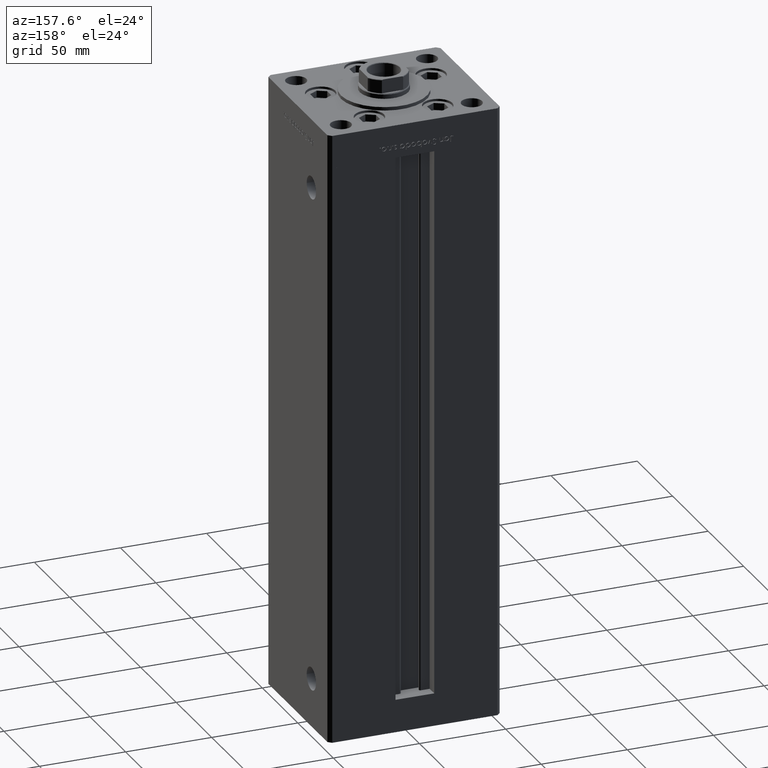
[diagram: clean part render]
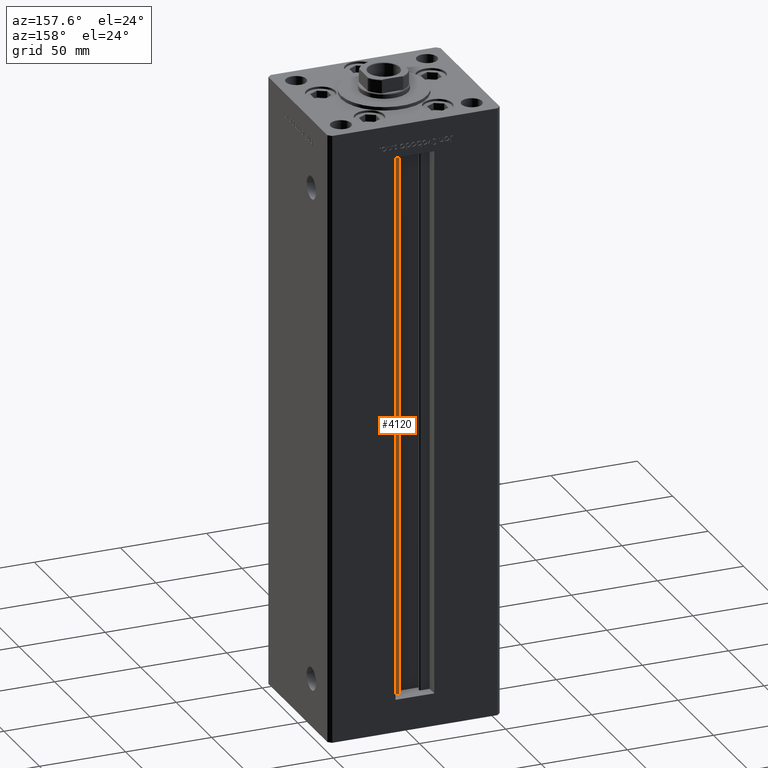
[diagram: same view with one face highlighted and labeled with its STEP entity id]
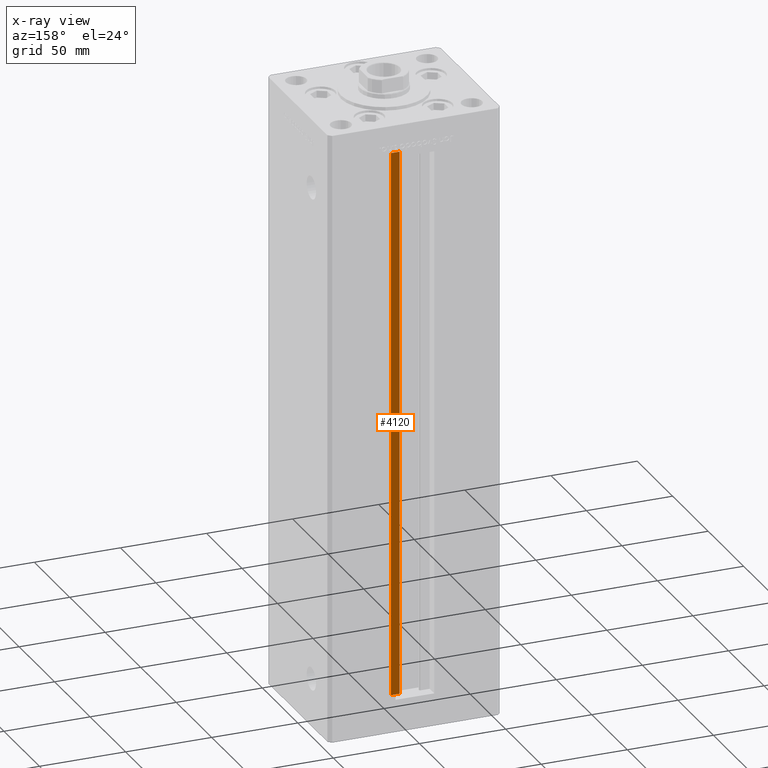
[diagram: x-ray of the same camera — body ghosted, the highlighted face saturated]
A machine part, auxiliary view. The second image highlights one B-rep face of the part: STEP entity #4120.
The next image is the same camera in x-ray: the body ghosted, the highlighted face saturated — about 0% of this face is hidden behind the body in this view.
In plain terms, the highlighted planar face has unit normal (0, -1, 0).
Its self-contained STEP definition (entity closure, byte-faithful):
#3272 = ORIENTED_EDGE ( 'NONE', *, *, #39943, .F. ) ;
#4120 = ADVANCED_FACE ( 'NONE', ( #20097 ), #44094, .F. ) ;
#5383 = DIRECTION ( 'NONE',  ( -1.000000000000000000, 0.000000000000000000, 0.000000000000000000 ) ) ;
#9024 = CARTESIAN_POINT ( 'NONE',  ( 6.183333333333997928, 36.99999999999999289, 0.000000000000000000 ) ) ;
#9573 = DIRECTION ( 'NONE',  ( 1.000000000000000000, 0.000000000000000000, 0.000000000000000000 ) ) ;
#9815 = CARTESIAN_POINT ( 'NONE',  ( 11.24999999999999822, 36.99999999999999289, 0.000000000000000000 ) ) ;
#11661 = DIRECTION ( 'NONE',  ( 0.000000000000000000, -1.000000000000000000, 0.000000000000000000 ) ) ;
#11993 = ORIENTED_EDGE ( 'NONE', *, *, #43380, .T. ) ;
#12639 = CARTESIAN_POINT ( 'NONE',  ( 11.24999999999999822, 36.99999999999999289, 0.000000000000000000 ) ) ;
#19156 = LINE ( 'NONE', #32066, #44090 ) ;
#19593 = ORIENTED_EDGE ( 'NONE', *, *, #26599, .F. ) ;
#19926 = LINE ( 'NONE', #33889, #29456 ) ;
#20097 = FACE_OUTER_BOUND ( 'NONE', #22567, .T. ) ;
#22567 = EDGE_LOOP ( 'NONE', ( #3272, #19593, #11993, #36175 ) ) ;
#23125 = DIRECTION ( 'NONE',  ( -0.000000000000000000, -0.000000000000000000, 1.000000000000000000 ) ) ;
#24621 = VERTEX_POINT ( 'NONE', #25260 ) ;
#25260 = CARTESIAN_POINT ( 'NONE',  ( 6.183333333333997928, 36.99999999999999289, 318.5000000000000000 ) ) ;
#25403 = LINE ( 'NONE', #49654, #32767 ) ;
#26599 = EDGE_CURVE ( 'NONE', #33777, #27580, #25403, .T. ) ;
#27380 = CARTESIAN_POINT ( 'NONE',  ( 11.24999999999999822, 36.99999999999999289, 318.5000000000000000 ) ) ;
#27580 = VERTEX_POINT ( 'NONE', #9815 ) ;
#28023 = DIRECTION ( 'NONE',  ( 0.000000000000000000, -0.000000000000000000, -1.000000000000000000 ) ) ;
#29456 = VECTOR ( 'NONE', #5383, 1000.000000000000000 ) ;
#30900 = VERTEX_POINT ( 'NONE', #27380 ) ;
#32066 = CARTESIAN_POINT ( 'NONE',  ( 6.183333333333997928, 36.99999999999999289, 0.000000000000000000 ) ) ;
#32767 = VECTOR ( 'NONE', #9573, 1000.000000000000000 ) ;
#33032 = VECTOR ( 'NONE', #36129, 1000.000000000000000 ) ;
#33391 = EDGE_CURVE ( 'NONE', #30900, #24621, #19926, .T. ) ;
#33777 = VERTEX_POINT ( 'NONE', #9024 ) ;
#33889 = CARTESIAN_POINT ( 'NONE',  ( 0.000000000000000000, 36.99999999999999289, 318.5000000000000000 ) ) ;
#36129 = DIRECTION ( 'NONE',  ( -0.000000000000000000, -0.000000000000000000, 1.000000000000000000 ) ) ;
#36175 = ORIENTED_EDGE ( 'NONE', *, *, #33391, .F. ) ;
#39373 = AXIS2_PLACEMENT_3D ( 'NONE', #48300, #11661, #28023 ) ;
#39943 = EDGE_CURVE ( 'NONE', #27580, #30900, #49027, .T. ) ;
#43380 = EDGE_CURVE ( 'NONE', #33777, #24621, #19156, .T. ) ;
#44090 = VECTOR ( 'NONE', #23125, 1000.000000000000000 ) ;
#44094 = PLANE ( 'NONE',  #39373 ) ;
#48300 = CARTESIAN_POINT ( 'NONE',  ( 6.183333333333997928, 36.99999999999999289, 0.000000000000000000 ) ) ;
#49027 = LINE ( 'NONE', #12639, #33032 ) ;
#49654 = CARTESIAN_POINT ( 'NONE',  ( 6.183333333333997928, 36.99999999999999289, 0.000000000000000000 ) ) ;